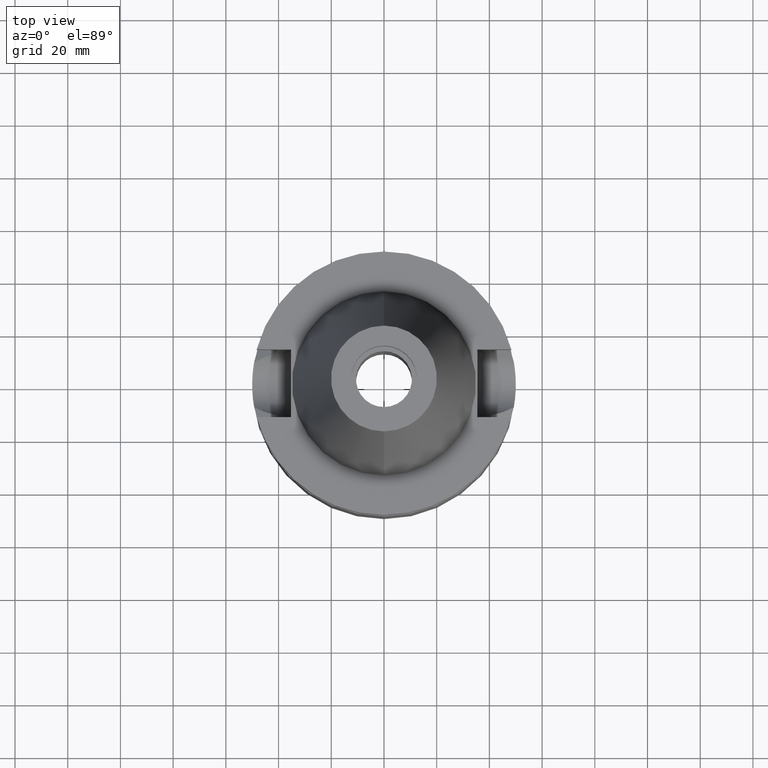
[diagram: clean part render]
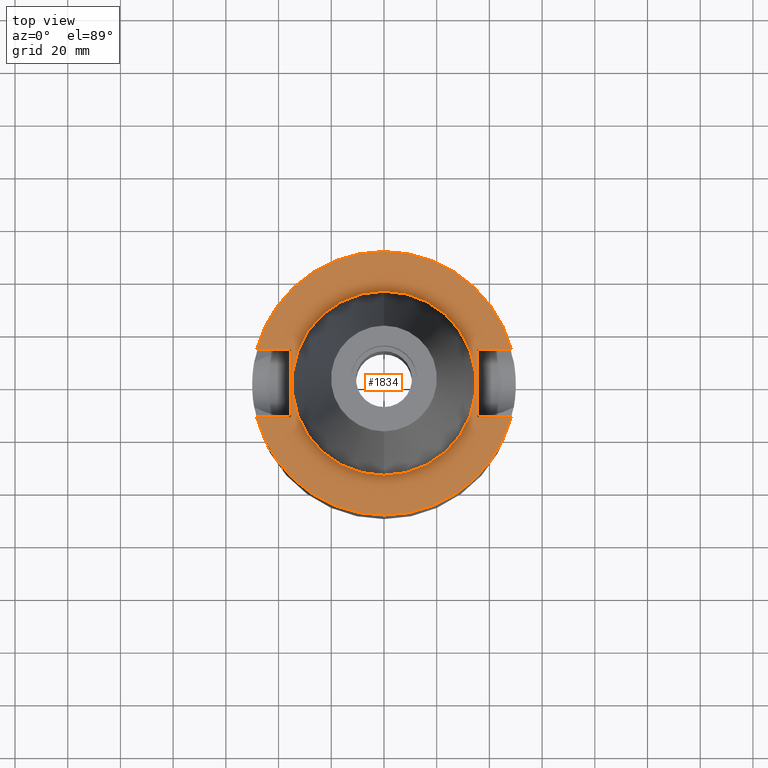
[diagram: same view with one face highlighted and labeled with its STEP entity id]
A machine part, top view. The second image highlights one B-rep face of the part: STEP entity #1834.
In plain terms, the highlighted planar face has unit normal (0, 0, -1).
Its self-contained STEP definition (entity closure, byte-faithful):
#662=DIRECTION('',(1.E0,0.E0,0.E0));
#663=VECTOR('',#662,1.292057015392E1);
#664=CARTESIAN_POINT('',(3.54E1,1.285E1,-1.5E0));
#665=LINE('',#664,#663);
#709=DIRECTION('',(0.E0,1.E0,0.E0));
#710=VECTOR('',#709,2.57E1);
#711=CARTESIAN_POINT('',(-3.54E1,-1.285E1,-1.5E0));
#712=LINE('',#711,#710);
#716=DIRECTION('',(-1.E0,0.E0,0.E0));
#717=VECTOR('',#716,1.292057015392E1);
#718=CARTESIAN_POINT('',(-3.54E1,1.285E1,-1.5E0));
#719=LINE('',#718,#717);
#723=CARTESIAN_POINT('',(0.E0,2.617560068498E-14,-1.5E0));
#724=DIRECTION('',(0.E0,0.E0,-1.E0));
#725=DIRECTION('',(-9.664114030784E-1,2.57E-1,0.E0));
#726=AXIS2_PLACEMENT_3D('',#723,#724,#725);
#731=CARTESIAN_POINT('',(0.E0,2.617560068498E-14,-1.5E0));
#732=DIRECTION('',(0.E0,0.E0,-1.E0));
#733=DIRECTION('',(0.E0,1.E0,0.E0));
#734=AXIS2_PLACEMENT_3D('',#731,#732,#733);
#739=DIRECTION('',(0.E0,-1.E0,0.E0));
#740=VECTOR('',#739,2.57E1);
#741=CARTESIAN_POINT('',(3.54E1,1.285E1,-1.5E0));
#742=LINE('',#741,#740);
#746=DIRECTION('',(1.E0,0.E0,0.E0));
#747=VECTOR('',#746,1.292057015392E1);
#748=CARTESIAN_POINT('',(3.54E1,-1.285E1,-1.5E0));
#749=LINE('',#748,#747);
#753=CARTESIAN_POINT('',(0.E0,2.617560068498E-14,-1.5E0));
#754=DIRECTION('',(0.E0,0.E0,-1.E0));
#755=DIRECTION('',(9.664114030784E-1,-2.57E-1,0.E0));
#756=AXIS2_PLACEMENT_3D('',#753,#754,#755);
#761=CARTESIAN_POINT('',(0.E0,2.617560068498E-14,-1.5E0));
#762=DIRECTION('',(0.E0,0.E0,-1.E0));
#763=DIRECTION('',(0.E0,-1.E0,0.E0));
#764=AXIS2_PLACEMENT_3D('',#761,#762,#763);
#769=CARTESIAN_POINT('',(0.E0,2.617560068498E-14,-1.5E0));
#770=DIRECTION('',(0.E0,0.E0,1.E0));
#771=DIRECTION('',(0.E0,-1.E0,0.E0));
#772=AXIS2_PLACEMENT_3D('',#769,#770,#771);
#777=CARTESIAN_POINT('',(0.E0,2.617560068498E-14,-1.5E0));
#778=DIRECTION('',(0.E0,0.E0,1.E0));
#779=DIRECTION('',(0.E0,1.E0,0.E0));
#780=AXIS2_PLACEMENT_3D('',#777,#778,#779);
#815=DIRECTION('',(-1.E0,0.E0,0.E0));
#816=VECTOR('',#815,1.292057015392E1);
#817=CARTESIAN_POINT('',(-3.54E1,-1.285E1,-1.5E0));
#818=LINE('',#817,#816);
#1177=CARTESIAN_POINT('',(-3.54E1,-1.285E1,-1.5E0));
#1178=VERTEX_POINT('',#1177);
#1179=CARTESIAN_POINT('',(-4.832057015392E1,-1.285E1,-1.5E0));
#1180=VERTEX_POINT('',#1179);
#1183=CARTESIAN_POINT('',(-3.54E1,1.285E1,-1.5E0));
#1184=VERTEX_POINT('',#1183);
#1185=CARTESIAN_POINT('',(-4.832057015392E1,1.285E1,-1.5E0));
#1186=VERTEX_POINT('',#1185);
#1187=CARTESIAN_POINT('',(-1.065814103640E-14,5.E1,-1.5E0));
#1188=CARTESIAN_POINT('',(4.832057015392E1,1.285E1,-1.5E0));
#1189=VERTEX_POINT('',#1187);
#1190=VERTEX_POINT('',#1188);
#1191=CARTESIAN_POINT('',(3.54E1,1.285E1,-1.5E0));
#1192=VERTEX_POINT('',#1191);
#1193=CARTESIAN_POINT('',(3.54E1,-1.285E1,-1.5E0));
#1194=VERTEX_POINT('',#1193);
#1195=CARTESIAN_POINT('',(4.832057015392E1,-1.285E1,-1.5E0));
#1196=VERTEX_POINT('',#1195);
#1197=CARTESIAN_POINT('',(1.065814103640E-14,-5.E1,-1.5E0));
#1198=VERTEX_POINT('',#1197);
#1199=CARTESIAN_POINT('',(0.E0,-3.4925E1,-1.5E0));
#1200=CARTESIAN_POINT('',(0.E0,3.4925E1,-1.5E0));
#1201=VERTEX_POINT('',#1199);
#1202=VERTEX_POINT('',#1200);
#1803=CARTESIAN_POINT('',(0.E0,1.206277097160E-14,-1.5E0));
#1804=DIRECTION('',(0.E0,0.E0,-1.E0));
#1805=DIRECTION('',(0.E0,-1.E0,0.E0));
#1806=AXIS2_PLACEMENT_3D('',#1803,#1804,#1805);
#1807=PLANE('',#1806);
#1809=ORIENTED_EDGE('',*,*,#1808,.T.);
#1811=ORIENTED_EDGE('',*,*,#1810,.T.);
#1813=ORIENTED_EDGE('',*,*,#1812,.T.);
#1815=ORIENTED_EDGE('',*,*,#1814,.T.);
#1816=ORIENTED_EDGE('',*,*,#1779,.F.);
#1817=ORIENTED_EDGE('',*,*,#1793,.T.);
#1819=ORIENTED_EDGE('',*,*,#1818,.T.);
#1821=ORIENTED_EDGE('',*,*,#1820,.T.);
#1823=ORIENTED_EDGE('',*,*,#1822,.T.);
#1825=ORIENTED_EDGE('',*,*,#1824,.F.);
#1826=EDGE_LOOP('',(#1809,#1811,#1813,#1815,#1816,#1817,#1819,#1821,#1823,
#1825));
#1827=FACE_OUTER_BOUND('',#1826,.F.);
#1829=ORIENTED_EDGE('',*,*,#1828,.T.);
#1831=ORIENTED_EDGE('',*,*,#1830,.T.);
#1832=EDGE_LOOP('',(#1829,#1831));
#1833=FACE_BOUND('',#1832,.F.);
#727=CIRCLE('',#726,5.E1);
#735=CIRCLE('',#734,5.E1);
#757=CIRCLE('',#756,5.E1);
#765=CIRCLE('',#764,5.E1);
#773=CIRCLE('',#772,3.4925E1);
#781=CIRCLE('',#780,3.4925E1);
#1779=EDGE_CURVE('',#1192,#1190,#665,.T.);
#1793=EDGE_CURVE('',#1192,#1194,#742,.T.);
#1808=EDGE_CURVE('',#1178,#1184,#712,.T.);
#1810=EDGE_CURVE('',#1184,#1186,#719,.T.);
#1812=EDGE_CURVE('',#1186,#1189,#727,.T.);
#1814=EDGE_CURVE('',#1189,#1190,#735,.T.);
#1818=EDGE_CURVE('',#1194,#1196,#749,.T.);
#1820=EDGE_CURVE('',#1196,#1198,#757,.T.);
#1822=EDGE_CURVE('',#1198,#1180,#765,.T.);
#1824=EDGE_CURVE('',#1178,#1180,#818,.T.);
#1828=EDGE_CURVE('',#1201,#1202,#773,.T.);
#1830=EDGE_CURVE('',#1202,#1201,#781,.T.);
#1834=ADVANCED_FACE('',(#1827,#1833),#1807,.F.);